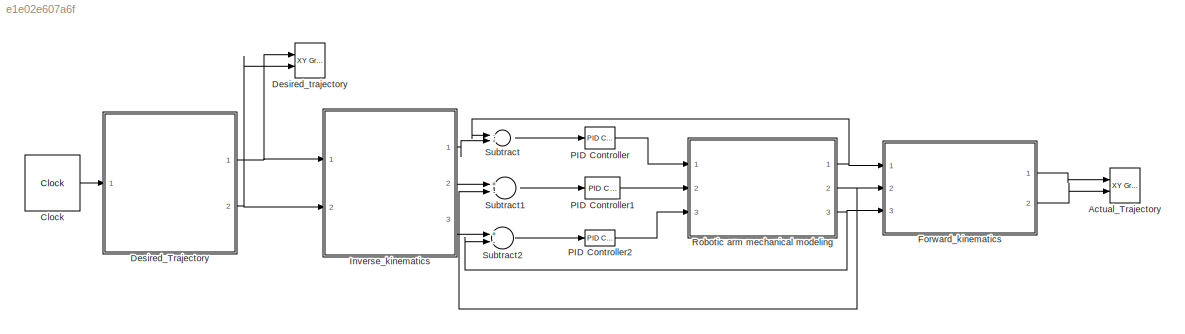
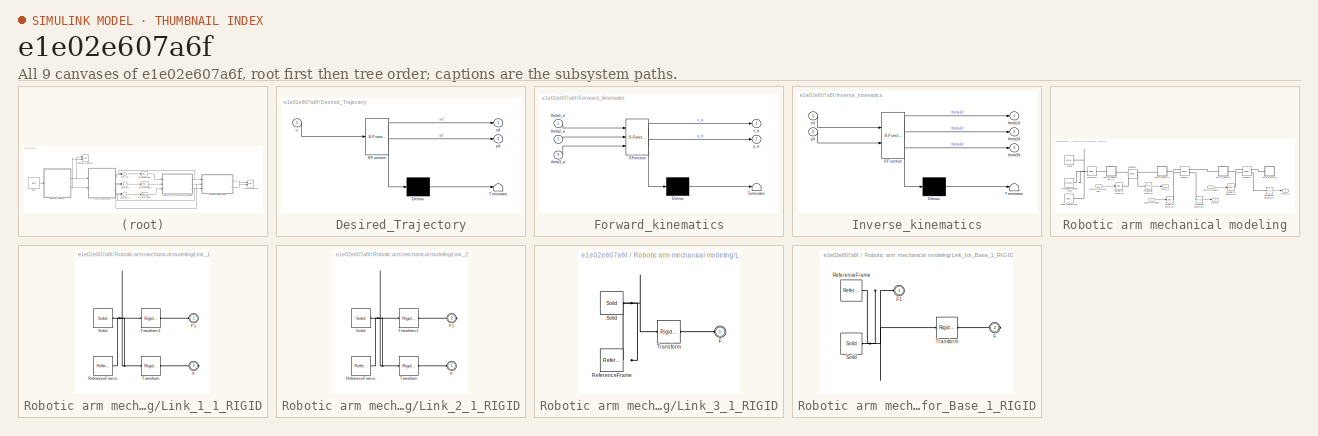
[diagram: thumbnail index - all 9 canvases of the model, root first then tree order]
MODEL slx_e1e02e607a6f
KIND model
CONFIG AbsTol = auto
CONFIG FixedStep = auto
CONFIG MaxStep = auto
CONFIG MinStep = auto
CONFIG RelTol = 1e-3
CONFIG SampleTimeConstraint = Unconstrained
CONFIG Solver = ode45
CONFIG SolverMode = Auto
CONFIG SolverName = ode45
CONFIG StartTime = 0.0
CONFIG StopTime = 20
WORKSPACE source: external: MATLAB File  (data not in archive)
BLOCK [Reference] Actual_Trajectory  REF=simulink/Sinks/XY Graph
  Ports = [2]
  SourceBlock = simulink/Sinks/XY Graph
  SourceType = XY scope.
BLOCK [Clock] Clock
BLOCK [SubSystem] Desired_Trajectory
  ErrorFcn = Stateflow.Translate.translate
  PermitHierarchicalResolution = ExplicitOnly
  Ports = [1, 2]
  RequestExecContextInheritance = off
  SFBlockType = MATLAB Function
  TreatAsAtomicUnit = on
  Variant = off
BLOCK [Demux] Desired_Trajectory/ Demux 
  Outputs = 1
  Ports = [1, 1]
BLOCK [S-Function] Desired_Trajectory/ SFunction 
  EnableBusSupport = on
  FunctionName = sf_sfun
  PortCounts = [1 3]
  Ports = [1, 3]
  SFunctionDeploymentMode = off
  Tag = Stateflow S-Function Trajectory_planning 2
BLOCK [Terminator] Desired_Trajectory/ Terminator 
BLOCK [Inport] Desired_Trajectory/u
  IconDisplay = Port number
BLOCK [Outport] Desired_Trajectory/xd
  IconDisplay = Port number
BLOCK [Outport] Desired_Trajectory/yd
  IconDisplay = Port number
  Port = 2
BLOCK [Reference] Desired_trajectory  REF=simulink/Sinks/XY Graph
  Ports = [2]
  SourceBlock = simulink/Sinks/XY Graph
  SourceType = XY scope.
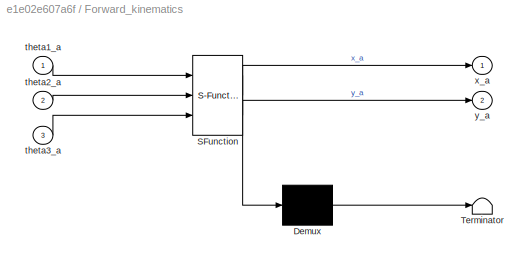
BLOCK [SubSystem] Forward_kinematics
  ErrorFcn = Stateflow.Translate.translate
  PermitHierarchicalResolution = ExplicitOnly
  Ports = [3, 2]
  RequestExecContextInheritance = off
  SFBlockType = MATLAB Function
  TreatAsAtomicUnit = on
  Variant = off
BLOCK [Demux] Forward_kinematics/ Demux 
  Outputs = 1
  Ports = [1, 1]
BLOCK [S-Function] Forward_kinematics/ SFunction 
  EnableBusSupport = on
  FunctionName = sf_sfun
  PortCounts = [3 3]
  Ports = [3, 3]
  SFunctionDeploymentMode = off
  Tag = Stateflow S-Function Trajectory_planning 3
BLOCK [Terminator] Forward_kinematics/ Terminator 
BLOCK [Inport] Forward_kinematics/theta1_a
  IconDisplay = Port number
BLOCK [Inport] Forward_kinematics/theta2_a
  IconDisplay = Port number
  Port = 2
BLOCK [Inport] Forward_kinematics/theta3_a
  IconDisplay = Port number
  Port = 3
BLOCK [Outport] Forward_kinematics/x_a
  IconDisplay = Port number
BLOCK [Outport] Forward_kinematics/y_a
  IconDisplay = Port number
  Port = 2
BLOCK [SubSystem] Inverse_kinematics
  ErrorFcn = Stateflow.Translate.translate
  PermitHierarchicalResolution = ExplicitOnly
  Ports = [2, 3]
  RequestExecContextInheritance = off
  SFBlockType = MATLAB Function
  TreatAsAtomicUnit = on
  Variant = off
BLOCK [Demux] Inverse_kinematics/ Demux 
  Outputs = 1
  Ports = [1, 1]
BLOCK [S-Function] Inverse_kinematics/ SFunction 
  EnableBusSupport = on
  FunctionName = sf_sfun
  PortCounts = [2 4]
  Ports = [2, 4]
  SFunctionDeploymentMode = off
  Tag = Stateflow S-Function Trajectory_planning 1
BLOCK [Terminator] Inverse_kinematics/ Terminator 
BLOCK [Outport] Inverse_kinematics/theta1d
  IconDisplay = Port number
BLOCK [Outport] Inverse_kinematics/theta2d
  IconDisplay = Port number
  Port = 2
BLOCK [Outport] Inverse_kinematics/theta3d
  IconDisplay = Port number
  Port = 3
BLOCK [Inport] Inverse_kinematics/xd
  IconDisplay = Port number
BLOCK [Inport] Inverse_kinematics/yd
  IconDisplay = Port number
  Port = 2
BLOCK [Reference] PID Controller  REF=simulink/Continuous/PID Controller
  Ports = [1, 1]
  SourceBlock = simulink/Continuous/PID Controller
  SourceType = PID 1dof
BLOCK [Reference] PID Controller1  REF=simulink/Continuous/PID Controller
  Ports = [1, 1]
  SourceBlock = simulink/Continuous/PID Controller
  SourceType = PID 1dof
BLOCK [Reference] PID Controller2  REF=simulink/Continuous/PID Controller
  Ports = [1, 1]
  SourceBlock = simulink/Continuous/PID Controller
  SourceType = PID 1dof
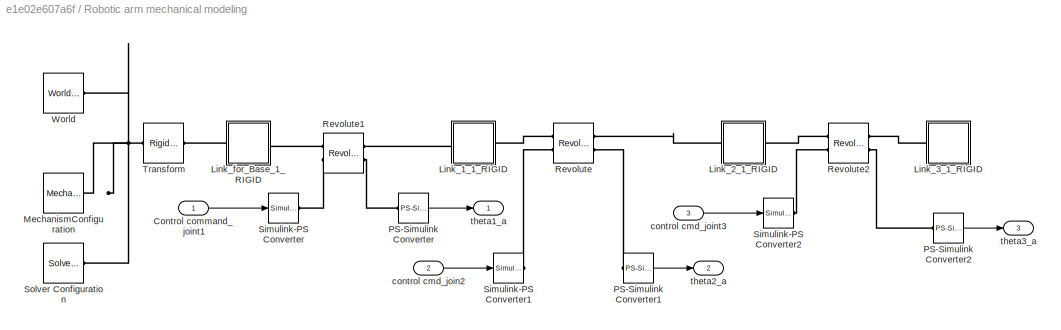
BLOCK [SubSystem] Robotic arm mechanical modeling
  Ports = [3, 3]
  RequestExecContextInheritance = off
  Variant = off
BLOCK [Inport] Robotic arm mechanical modeling/Control command_joint1
  IconDisplay = Port number
BLOCK [SubSystem] Robotic arm mechanical modeling/Link_1_1_RIGID
  Ports = [0, 0, 0, 0, 0, 1, 1]
  RequestExecContextInheritance = off
  Variant = off
BLOCK [PMIOPort] Robotic arm mechanical modeling/Link_1_1_RIGID/F
  Port = 2
  Side = Right
BLOCK [PMIOPort] Robotic arm mechanical modeling/Link_1_1_RIGID/F1
  Port = 1
  Side = Left
BLOCK [Reference] Robotic arm mechanical modeling/Link_1_1_RIGID/ReferenceFrame  REF=sm_lib/Frames and
Transforms/Reference
Frame
  Ports = [0, 0, 0, 0, 0, 0, 1]
  SourceBlock = sm_lib/Frames and\nTransforms/Reference\nFrame
  SourceType = Reference\nFrame
BLOCK [Reference] Robotic arm mechanical modeling/Link_1_1_RIGID/Solid  REF=sm_lib/Body Elements/Solid
  Ports = [0, 0, 0, 0, 0, 0, 1]
  SourceBlock = sm_lib/Body Elements/Solid
  SourceType = Solid
BLOCK [Reference] Robotic arm mechanical modeling/Link_1_1_RIGID/Transform  REF=sm_lib/Frames and
Transforms/Rigid
Transform
  Ports = [0, 0, 0, 0, 0, 1, 1]
  SourceBlock = sm_lib/Frames and\nTransforms/Rigid\nTransform
  SourceType = Rigid\nTransform
BLOCK [Reference] Robotic arm mechanical modeling/Link_1_1_RIGID/Transform1  REF=sm_lib/Frames and
Transforms/Rigid
Transform
  Ports = [0, 0, 0, 0, 0, 1, 1]
  SourceBlock = sm_lib/Frames and\nTransforms/Rigid\nTransform
  SourceType = Rigid\nTransform
BLOCK [SubSystem] Robotic arm mechanical modeling/Link_2_1_RIGID
  Ports = [0, 0, 0, 0, 0, 1, 1]
  RequestExecContextInheritance = off
  Variant = off
BLOCK [PMIOPort] Robotic arm mechanical modeling/Link_2_1_RIGID/F
  Port = 1
  Side = Left
BLOCK [PMIOPort] Robotic arm mechanical modeling/Link_2_1_RIGID/F1
  Port = 2
  Side = Right
BLOCK [Reference] Robotic arm mechanical modeling/Link_2_1_RIGID/ReferenceFrame  REF=sm_lib/Frames and
Transforms/Reference
Frame
  Ports = [0, 0, 0, 0, 0, 0, 1]
  SourceBlock = sm_lib/Frames and\nTransforms/Reference\nFrame
  SourceType = Reference\nFrame
BLOCK [Reference] Robotic arm mechanical modeling/Link_2_1_RIGID/Solid  REF=sm_lib/Body Elements/Solid
  Ports = [0, 0, 0, 0, 0, 0, 1]
  SourceBlock = sm_lib/Body Elements/Solid
  SourceType = Solid
BLOCK [Reference] Robotic arm mechanical modeling/Link_2_1_RIGID/Transform  REF=sm_lib/Frames and
Transforms/Rigid
Transform
  Ports = [0, 0, 0, 0, 0, 1, 1]
  SourceBlock = sm_lib/Frames and\nTransforms/Rigid\nTransform
  SourceType = Rigid\nTransform
BLOCK [Reference] Robotic arm mechanical modeling/Link_2_1_RIGID/Transform1  REF=sm_lib/Frames and
Transforms/Rigid
Transform
  Ports = [0, 0, 0, 0, 0, 1, 1]
  SourceBlock = sm_lib/Frames and\nTransforms/Rigid\nTransform
  SourceType = Rigid\nTransform
BLOCK [SubSystem] Robotic arm mechanical modeling/Link_3_1_RIGID
  Ports = [0, 0, 0, 0, 0, 1]
  RequestExecContextInheritance = off
  Variant = off
BLOCK [PMIOPort] Robotic arm mechanical modeling/Link_3_1_RIGID/F
  Port = 1
  Side = Left
BLOCK [Reference] Robotic arm mechanical modeling/Link_3_1_RIGID/ReferenceFrame  REF=sm_lib/Frames and
Transforms/Reference
Frame
  Ports = [0, 0, 0, 0, 0, 0, 1]
  SourceBlock = sm_lib/Frames and\nTransforms/Reference\nFrame
  SourceType = Reference\nFrame
BLOCK [Reference] Robotic arm mechanical modeling/Link_3_1_RIGID/Solid  REF=sm_lib/Body Elements/Solid
  Ports = [0, 0, 0, 0, 0, 0, 1]
  SourceBlock = sm_lib/Body Elements/Solid
  SourceType = Solid
BLOCK [Reference] Robotic arm mechanical modeling/Link_3_1_RIGID/Transform  REF=sm_lib/Frames and
Transforms/Rigid
Transform
  Ports = [0, 0, 0, 0, 0, 1, 1]
  SourceBlock = sm_lib/Frames and\nTransforms/Rigid\nTransform
  SourceType = Rigid\nTransform
BLOCK [SubSystem] Robotic arm mechanical modeling/Link_for_Base_1_RIGID
  Ports = [0, 0, 0, 0, 0, 1, 1]
  RequestExecContextInheritance = off
  Variant = off
BLOCK [PMIOPort] Robotic arm mechanical modeling/Link_for_Base_1_RIGID/F
  Port = 2
  Side = Right
BLOCK [PMIOPort] Robotic arm mechanical modeling/Link_for_Base_1_RIGID/F1
  Port = 1
  Side = Left
BLOCK [Reference] Robotic arm mechanical modeling/Link_for_Base_1_RIGID/ReferenceFrame  REF=sm_lib/Frames and
Transforms/Reference
Frame
  Ports = [0, 0, 0, 0, 0, 0, 1]
  SourceBlock = sm_lib/Frames and\nTransforms/Reference\nFrame
  SourceType = Reference\nFrame
BLOCK [Reference] Robotic arm mechanical modeling/Link_for_Base_1_RIGID/Solid  REF=sm_lib/Body Elements/Solid
  Ports = [0, 0, 0, 0, 0, 0, 1]
  SourceBlock = sm_lib/Body Elements/Solid
  SourceType = Solid
BLOCK [Reference] Robotic arm mechanical modeling/Link_for_Base_1_RIGID/Transform  REF=sm_lib/Frames and
Transforms/Rigid
Transform
  Ports = [0, 0, 0, 0, 0, 1, 1]
  SourceBlock = sm_lib/Frames and\nTransforms/Rigid\nTransform
  SourceType = Rigid\nTransform
BLOCK [Reference] Robotic arm mechanical modeling/MechanismConfiguration  REF=sm_lib/Utilities/Mechanism
Configuration
  Ports = [0, 0, 0, 0, 0, 0, 1]
  SourceBlock = sm_lib/Utilities/Mechanism\nConfiguration
  SourceType = Mechanism\nConfiguration
BLOCK [Reference] Robotic arm mechanical modeling/PS-Simulink Converter  REF=nesl_utility/PS-Simulink
Converter
  Ports = [0, 1, 0, 0, 0, 1]
  SourceBlock = nesl_utility/PS-Simulink\nConverter
  SourceType = PS-Simulink\nConverter
BLOCK [Reference] Robotic arm mechanical modeling/PS-Simulink Converter1  REF=nesl_utility/PS-Simulink
Converter
  Ports = [0, 1, 0, 0, 0, 1]
  SourceBlock = nesl_utility/PS-Simulink\nConverter
  SourceType = PS-Simulink\nConverter
BLOCK [Reference] Robotic arm mechanical modeling/PS-Simulink Converter2  REF=nesl_utility/PS-Simulink
Converter
  Ports = [0, 1, 0, 0, 0, 1]
  SourceBlock = nesl_utility/PS-Simulink\nConverter
  SourceType = PS-Simulink\nConverter
BLOCK [Reference] Robotic arm mechanical modeling/Revolute  REF=sm_lib/Joints/Revolute Joint
  Ports = [0, 0, 0, 0, 0, 2, 2]
  SourceBlock = sm_lib/Joints/Revolute Joint
  SourceType = Revolute Joint
BLOCK [Reference] Robotic arm mechanical modeling/Revolute1  REF=sm_lib/Joints/Revolute Joint
  Ports = [0, 0, 0, 0, 0, 2, 2]
  SourceBlock = sm_lib/Joints/Revolute Joint
  SourceType = Revolute Joint
BLOCK [Reference] Robotic arm mechanical modeling/Revolute2  REF=sm_lib/Joints/Revolute Joint
  Ports = [0, 0, 0, 0, 0, 2, 2]
  SourceBlock = sm_lib/Joints/Revolute Joint
  SourceType = Revolute Joint
BLOCK [Reference] Robotic arm mechanical modeling/Simulink-PS Converter  REF=nesl_utility/Simulink-PS
Converter
  Ports = [1, 0, 0, 0, 0, 0, 1]
  SourceBlock = nesl_utility/Simulink-PS\nConverter
  SourceType = Simulink-PS\nConverter
BLOCK [Reference] Robotic arm mechanical modeling/Simulink-PS Converter1  REF=nesl_utility/Simulink-PS
Converter
  Ports = [1, 0, 0, 0, 0, 0, 1]
  SourceBlock = nesl_utility/Simulink-PS\nConverter
  SourceType = Simulink-PS\nConverter
BLOCK [Reference] Robotic arm mechanical modeling/Simulink-PS Converter2  REF=nesl_utility/Simulink-PS
Converter
  Ports = [1, 0, 0, 0, 0, 0, 1]
  SourceBlock = nesl_utility/Simulink-PS\nConverter
  SourceType = Simulink-PS\nConverter
BLOCK [Reference] Robotic arm mechanical modeling/Solver Configuration  REF=nesl_utility/Solver
Configuration
  Ports = [0, 0, 0, 0, 0, 0, 1]
  SourceBlock = nesl_utility/Solver\nConfiguration
  SourceType = Solver\nConfiguration
BLOCK [Reference] Robotic arm mechanical modeling/Transform  REF=sm_lib/Frames and
Transforms/Rigid
Transform
  Ports = [0, 0, 0, 0, 0, 1, 1]
  SourceBlock = sm_lib/Frames and\nTransforms/Rigid\nTransform
  SourceType = Rigid\nTransform
BLOCK [Reference] Robotic arm mechanical modeling/World  REF=sm_lib/Frames and
Transforms/World Frame
  Ports = [0, 0, 0, 0, 0, 0, 1]
  SourceBlock = sm_lib/Frames and\nTransforms/World Frame
  SourceType = World Frame
BLOCK [Inport] Robotic arm mechanical modeling/control cmd_join2
  IconDisplay = Port number
  Port = 2
BLOCK [Inport] Robotic arm mechanical modeling/control cmd_joint3
  IconDisplay = Port number
  Port = 3
BLOCK [Outport] Robotic arm mechanical modeling/theta1_a
  IconDisplay = Port number
BLOCK [Outport] Robotic arm mechanical modeling/theta2_a
  IconDisplay = Port number
  Port = 2
BLOCK [Outport] Robotic arm mechanical modeling/theta3_a
  IconDisplay = Port number
  Port = 3
BLOCK [Sum] Subtract
  InputSameDT = off
  Inputs = -+
  OutDataTypeStr = Inherit: Inherit via internal rule
  Ports = [2, 1]
  SaturateOnIntegerOverflow = off
BLOCK [Sum] Subtract1
  InputSameDT = off
  Inputs = +-
  OutDataTypeStr = Inherit: Inherit via internal rule
  Ports = [2, 1]
  SaturateOnIntegerOverflow = off
BLOCK [Sum] Subtract2
  InputSameDT = off
  Inputs = +-
  OutDataTypeStr = Inherit: Inherit via internal rule
  Ports = [2, 1]
  SaturateOnIntegerOverflow = off
LINE Clock:1 -> Desired_Trajectory:1
NET Desired_Trajectory:1 -> Desired_trajectory:1, Inverse_kinematics:1
NET Desired_Trajectory:2 -> Desired_trajectory:2, Inverse_kinematics:2
LINE Forward_kinematics:1 -> Actual_Trajectory:1
LINE Forward_kinematics:2 -> Actual_Trajectory:2
LINE Inverse_kinematics:1 -> Subtract:2
LINE Inverse_kinematics:2 -> Subtract1:1
LINE Inverse_kinematics:3 -> Subtract2:1
LINE PID Controller1:1 -> Robotic arm mechanical modeling:2
LINE PID Controller2:1 -> Robotic arm mechanical modeling:3
LINE PID Controller:1 -> Robotic arm mechanical modeling:1
LINE Robotic arm mechanical modeling/Control command_joint1:1 -> Robotic arm mechanical modeling/Simulink-PS Converter:1
LINE Robotic arm mechanical modeling/PS-Simulink Converter1:1 -> Robotic arm mechanical modeling/theta2_a:1
LINE Robotic arm mechanical modeling/PS-Simulink Converter2:1 -> Robotic arm mechanical modeling/theta3_a:1
LINE Robotic arm mechanical modeling/PS-Simulink Converter:1 -> Robotic arm mechanical modeling/theta1_a:1
LINE Robotic arm mechanical modeling/control cmd_join2:1 -> Robotic arm mechanical modeling/Simulink-PS Converter1:1
LINE Robotic arm mechanical modeling/control cmd_joint3:1 -> Robotic arm mechanical modeling/Simulink-PS Converter2:1
NET Robotic arm mechanical modeling:1 -> Forward_kinematics:1, Subtract:1
NET Robotic arm mechanical modeling:2 -> Forward_kinematics:2, Subtract1:2
NET Robotic arm mechanical modeling:3 -> Forward_kinematics:3, Subtract2:2
LINE Subtract1:1 -> PID Controller1:1
LINE Subtract2:1 -> PID Controller2:1
LINE Subtract:1 -> PID Controller:1
PLINE Robotic arm mechanical modeling/Link_1_1_RIGID/F1:RConn1 -- Robotic arm mechanical modeling/Link_1_1_RIGID/Transform1:RConn1
PLINE Robotic arm mechanical modeling/Link_1_1_RIGID/F:RConn1 -- Robotic arm mechanical modeling/Link_1_1_RIGID/Transform:RConn1
PNET net1: Robotic arm mechanical modeling/Link_1_1_RIGID/ReferenceFrame:RConn1 -- Robotic arm mechanical modeling/Link_1_1_RIGID/Solid:RConn1 -- Robotic arm mechanical modeling/Link_1_1_RIGID/Transform1:LConn1 -- Robotic arm mechanical modeling/Link_1_1_RIGID/Transform:LConn1
PLINE Robotic arm mechanical modeling/Link_1_1_RIGID:LConn1 -- Robotic arm mechanical modeling/Revolute1:RConn1
PLINE Robotic arm mechanical modeling/Link_1_1_RIGID:RConn1 -- Robotic arm mechanical modeling/Revolute:LConn1
PLINE Robotic arm mechanical modeling/Link_2_1_RIGID/F1:RConn1 -- Robotic arm mechanical modeling/Link_2_1_RIGID/Transform1:RConn1
PLINE Robotic arm mechanical modeling/Link_2_1_RIGID/F:RConn1 -- Robotic arm mechanical modeling/Link_2_1_RIGID/Transform:RConn1
PNET net2: Robotic arm mechanical modeling/Link_2_1_RIGID/ReferenceFrame:RConn1 -- Robotic arm mechanical modeling/Link_2_1_RIGID/Solid:RConn1 -- Robotic arm mechanical modeling/Link_2_1_RIGID/Transform1:LConn1 -- Robotic arm mechanical modeling/Link_2_1_RIGID/Transform:LConn1
PLINE Robotic arm mechanical modeling/Link_2_1_RIGID:LConn1 -- Robotic arm mechanical modeling/Revolute:RConn1
PLINE Robotic arm mechanical modeling/Link_2_1_RIGID:RConn1 -- Robotic arm mechanical modeling/Revolute2:LConn1
PLINE Robotic arm mechanical modeling/Link_3_1_RIGID/F:RConn1 -- Robotic arm mechanical modeling/Link_3_1_RIGID/Transform:RConn1
PNET net3: Robotic arm mechanical modeling/Link_3_1_RIGID/ReferenceFrame:RConn1 -- Robotic arm mechanical modeling/Link_3_1_RIGID/Solid:RConn1 -- Robotic arm mechanical modeling/Link_3_1_RIGID/Transform:LConn1
PLINE Robotic arm mechanical modeling/Link_3_1_RIGID:LConn1 -- Robotic arm mechanical modeling/Revolute2:RConn1
PNET net4: Robotic arm mechanical modeling/Link_for_Base_1_RIGID/F1:RConn1 -- Robotic arm mechanical modeling/Link_for_Base_1_RIGID/ReferenceFrame:RConn1 -- Robotic arm mechanical modeling/Link_for_Base_1_RIGID/Solid:RConn1 -- Robotic arm mechanical modeling/Link_for_Base_1_RIGID/Transform:LConn1
PLINE Robotic arm mechanical modeling/Link_for_Base_1_RIGID/F:RConn1 -- Robotic arm mechanical modeling/Link_for_Base_1_RIGID/Transform:RConn1
PLINE Robotic arm mechanical modeling/Link_for_Base_1_RIGID:LConn1 -- Robotic arm mechanical modeling/Transform:RConn1
PLINE Robotic arm mechanical modeling/Link_for_Base_1_RIGID:RConn1 -- Robotic arm mechanical modeling/Revolute1:LConn1
PNET net5: Robotic arm mechanical modeling/MechanismConfiguration:RConn1 -- Robotic arm mechanical modeling/Solver Configuration:RConn1 -- Robotic arm mechanical modeling/Transform:LConn1 -- Robotic arm mechanical modeling/World:RConn1
PLINE Robotic arm mechanical modeling/PS-Simulink Converter1:LConn1 -- Robotic arm mechanical modeling/Revolute:RConn2
PLINE Robotic arm mechanical modeling/PS-Simulink Converter2:LConn1 -- Robotic arm mechanical modeling/Revolute2:RConn2
PLINE Robotic arm mechanical modeling/PS-Simulink Converter:LConn1 -- Robotic arm mechanical modeling/Revolute1:RConn2
PLINE Robotic arm mechanical modeling/Revolute1:LConn2 -- Robotic arm mechanical modeling/Simulink-PS Converter:RConn1
PLINE Robotic arm mechanical modeling/Revolute2:LConn2 -- Robotic arm mechanical modeling/Simulink-PS Converter2:RConn1
PLINE Robotic arm mechanical modeling/Revolute:LConn2 -- Robotic arm mechanical modeling/Simulink-PS Converter1:RConn1
note: NET lines group one-source signal fan-out (src -> all destinations, sorted); 1:1 wires keep LINE; PNET lines group multi-terminal physical nets as a canonical sorted terminal list (undirected conserving connections); 2-terminal nets keep the pairwise PLINE form
CHART Inverse_kinematics states=1 transitions=1
  STATE_LABEL 'eML_blk_kernel()'
  STATE_LABEL 'SCRIPT:\nfunction [theta1d,theta2d,theta3d] = Inverse_Kinematics(xd,yd)\nL1=4;\nL2=4;\nL3=4;\nphi = atan(xd/yd);\n\nxw=xd-L3*cos(phi);\nyw=yd-L3*sin(phi);\n%Xw and Yw are the position of end effector\ntheta2d=acos((((xw)^2 +(yw)^2-L1^2-L2^2))/(2*L1*L2));\ntheta1d=atan(yw/xw)-atan((L2*sin(theta2d))/(L1+L2*cos(theta2d)));\ntheta3d=phi-(theta2d+theta1d);\n'
CHART Desired_Trajectory states=1 transitions=1
  STATE_LABEL 'eML_blk_kernel()'
  STATE_LABEL 'SCRIPT:\nfunction [xd,yd] = Desired_Trajectory(u)%%here the first one is the output and the one in the right side is function name or input\nxd=4;\nyd=-4;\nif u>=0 && u<1\n     xd=4+2*u;\n     yd=-4+2*u;\n elseif u<2 && u>=1\n     u=u-1;\n     xd=6+2*u;\n     yd=-2-2*u;\n  elseif u<3 && u>=2\n      u=u-2;\n     xd=8-2*u;\n     yd=-4-2*u;\n   elseif u<4 && u>=3\n     u=u-3;\n       xd=6-2*u;\n     yd=-6+2*u;\n \n end\n...<+1ch>'
CHART Forward_kinematics states=1 transitions=1
  STATE_LABEL 'eML_blk_kernel()'
  STATE_LABEL 'SCRIPT:\nfunction[x_a,y_a] = Forward_Kinematics(theta1_a,theta2_a,theta3_a)\nL1=4;\nL2=4;\nL3=4;\n\nx_a=L1*cos(theta1_a)+L2*cos(theta1_a+theta2_a)+L3*cos(theta1_a+theta2_a+theta3_a);\ny_a=L1*sin(theta1_a)+L2*sin(theta1_a+theta2_a)+L3*sin(theta1_a+theta2_a+theta3_a);\n%save all these three commands to make a change on the matlab function'
